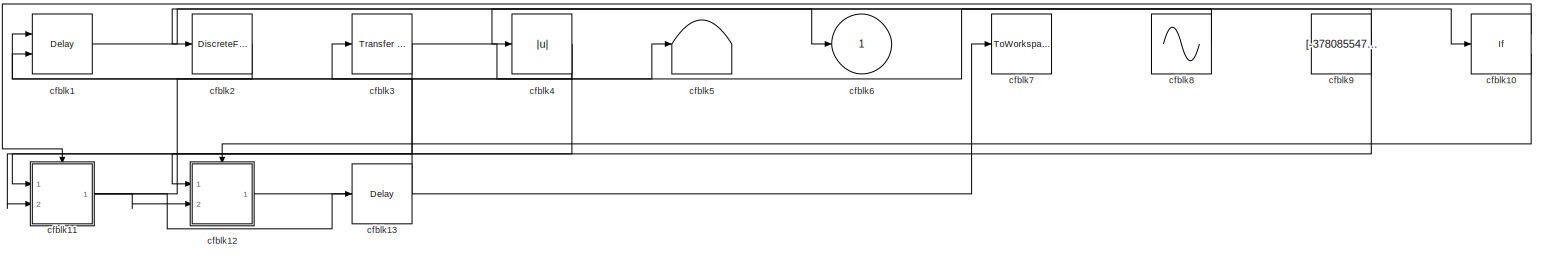
[diagram: root canvas - part 1/1, most of the canvas]
MODEL slx_f99591232029
KIND model
CONFIG AbsTol = auto
CONFIG EnableMultiTasking = off
CONFIG FixedStep = auto
CONFIG MaxStep = auto
CONFIG MinStep = auto
CONFIG RelTol = 1e-3
CONFIG SampleTimeConstraint = Unconstrained
CONFIG SolverName = VariableStepAuto
CONFIG StartTime = 0.0
CONFIG StopTime = 10.0
BLOCK [Delay] cfblk1
  InputPortMap = u0,e6
  Ports = [2, 1]
  SampleTime = 1
  ShowEnablePort = on
BLOCK [If] cfblk10
  IfExpression = u1 >= 0
  Ports = [1, 2]
  SampleTime = 1
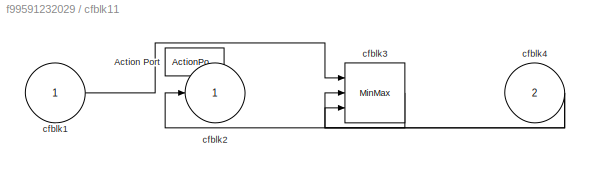
BLOCK [SubSystem] cfblk11
  Ports = [2, 1, 0, 0, 0, 0, 0, 1]
  RequestExecContextInheritance = off
  TreatAsAtomicUnit = on
BLOCK [ActionPort] cfblk11/Action Port
  ActionPortLabel = if(u1 >= 0)
BLOCK [Inport] cfblk11/cfblk1
BLOCK [Outport] cfblk11/cfblk2
BLOCK [MinMax] cfblk11/cfblk3
  Function = max
  Inputs = 3
  Ports = [3, 1]
BLOCK [Inport] cfblk11/cfblk4
  Port = 2
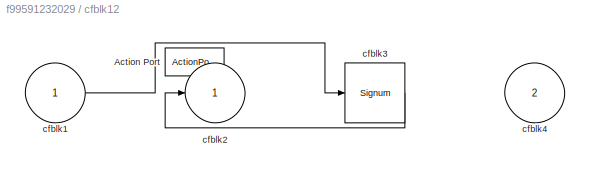
BLOCK [SubSystem] cfblk12
  Ports = [2, 1, 0, 0, 0, 0, 0, 1]
  RequestExecContextInheritance = off
  TreatAsAtomicUnit = on
BLOCK [ActionPort] cfblk12/Action Port
  ActionPortLabel = else
BLOCK [Inport] cfblk12/cfblk1
BLOCK [Outport] cfblk12/cfblk2
BLOCK [Signum] cfblk12/cfblk3
BLOCK [Inport] cfblk12/cfblk4
  Port = 2
BLOCK [Delay] cfblk13
  InputPortMap = u0
  Ports = [1, 1]
  SampleTime = 1
BLOCK [DiscreteFilter] cfblk2
  InputPortMap = u0
  Ports = [1, 1]
  SampleTime = 1
BLOCK [Reference] cfblk3  REF=simulink/Discrete/Transfer Fcn
Real Zero
  Ports = [1, 1]
  SourceBlock = simulink/Discrete/Transfer Fcn\nReal Zero
  SourceProductBaseCode = SL
  SourceType = Transfer Fcn Real Zero
BLOCK [Abs] cfblk4
  SaturateOnIntegerOverflow = off
BLOCK [Terminator] cfblk5
BLOCK [Outport] cfblk6
BLOCK [ToWorkspace] cfblk7
  FixptAsFi = on
  MaxDataPoints = inf
  Ports = [1]
  SampleTime = -1
  SaveFormat = Timeseries
  VariableName = iikafef
BLOCK [Sin] cfblk8
  Amplitude = [-440683838.246815]
  Bias = [450230892.144904]
  Ports = [0, 1]
  SampleTime = 0
BLOCK [Constant] cfblk9
  SampleTime = 1
  Value = [-378085547.887429]
LINE cfblk10:1 -> cfblk11:ifaction
LINE cfblk10:2 -> cfblk12:ifaction
LINE cfblk11/cfblk1:1 -> cfblk11/cfblk3:1
LINE cfblk11/cfblk3:1 -> cfblk11/cfblk2:1
NET cfblk11/cfblk4:1 -> cfblk11/cfblk3:2, cfblk11/cfblk3:3
NET cfblk11:1 -> cfblk12:2, cfblk13:1, cfblk5:1
LINE cfblk12/cfblk1:1 -> cfblk12/cfblk3:1
LINE cfblk12/cfblk3:1 -> cfblk12/cfblk2:1
LINE cfblk12:1 -> cfblk7:1
LINE cfblk13:1 -> cfblk3:1
LINE cfblk1:1 -> cfblk6:1
LINE cfblk2:1 -> cfblk1:1
NET cfblk3:1 -> cfblk10:1, cfblk12:1
NET cfblk4:1 -> cfblk11:2, cfblk1:2
LINE cfblk8:1 -> cfblk4:1
NET cfblk9:1 -> cfblk11:1, cfblk2:1
note: NET lines group one-source signal fan-out (src -> all destinations, sorted); 1:1 wires keep LINE
